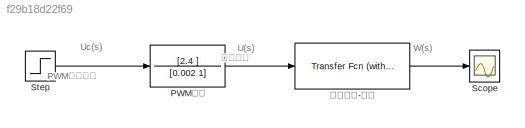
MODEL slx_f29b18d22f69
KIND model
CONFIG AbsTol = auto
CONFIG EnableMultiTasking = off
CONFIG FixedStep = auto
CONFIG MaxStep = auto
CONFIG MinStep = auto
CONFIG RelTol = 1e-3
CONFIG SampleTimeConstraint = Unconstrained
CONFIG Solver = VariableStepAuto
CONFIG SolverName = VariableStepAuto
CONFIG StartTime = 0.0
CONFIG StopTime = 10.0
BLOCK [TransferFcn] PWM功放
  Denominator = [0.002 1]
  Numerator = [2.4 ]
BLOCK [Scope] Scope
  Floating = off
  NumInputPorts = 1
  Ports = [1]
  ScopeSpecificationString = Simulink.scopes.TimeScopeBlockCfg('CurrentConfiguration', extmgr.ConfigurationSet(extmgr.Configuration('Core','General UI',true),extmgr.Configuration('Core','Source UI',true),extmgr.Configuration('Sources','WiredSimulink',true),extmgr.Configuration('Visuals','Time Domain',true,'SerializedDisplays',{struct('MinYLimReal','-0.03','MaxYLimReal','0.27','YLabelReal','','MinYLimMag','0.00000','MaxYLimMag...<+1310ch>
BLOCK [Step] Step
  SampleTime = 0
  Time = 0
BLOCK [Reference] 被控对象-电机   REF=simulink_extras/Additional
Linear/Transfer Fcn
(with initial outputs)
  Ports = [1, 1]
  SourceBlock = simulink_extras/Additional\nLinear/Transfer Fcn\n(with initial outputs)
  SourceProductBaseCode = SL
  SourceProductName = Simulink
  SourceType = Transfer Function with Initial Outputs
ANNOTATION (root): PWM控制电压
ANNOTATION (root): U(s)
ANNOTATION (root): Uc(s)
ANNOTATION (root): W(s)
ANNOTATION (root): 电机电压
LINE PWM功放:1 -> 被控对象-电机 :1
LINE Step:1 -> PWM功放:1
LINE 被控对象-电机 :1 -> Scope:1
